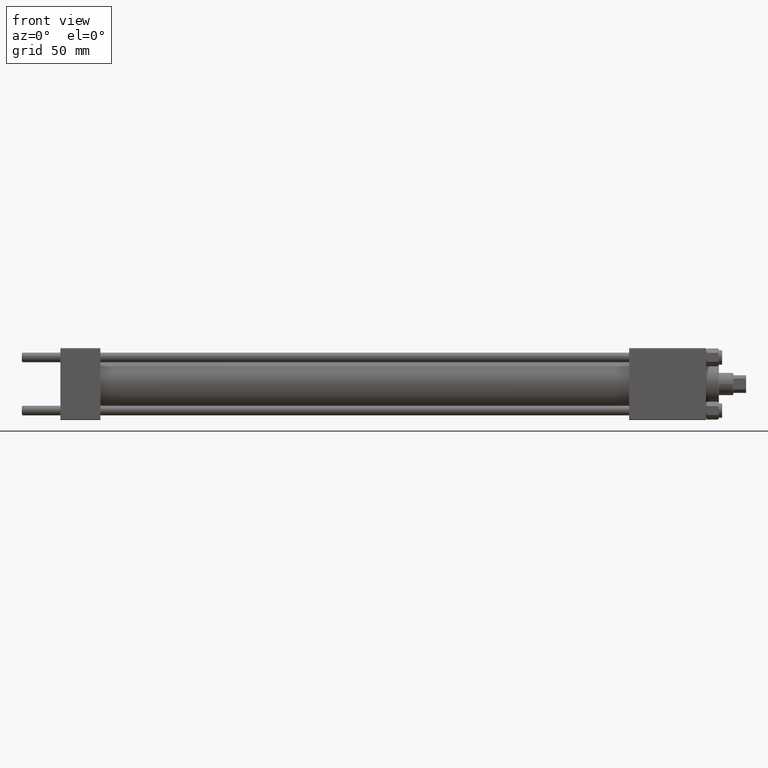
[diagram: clean part render]
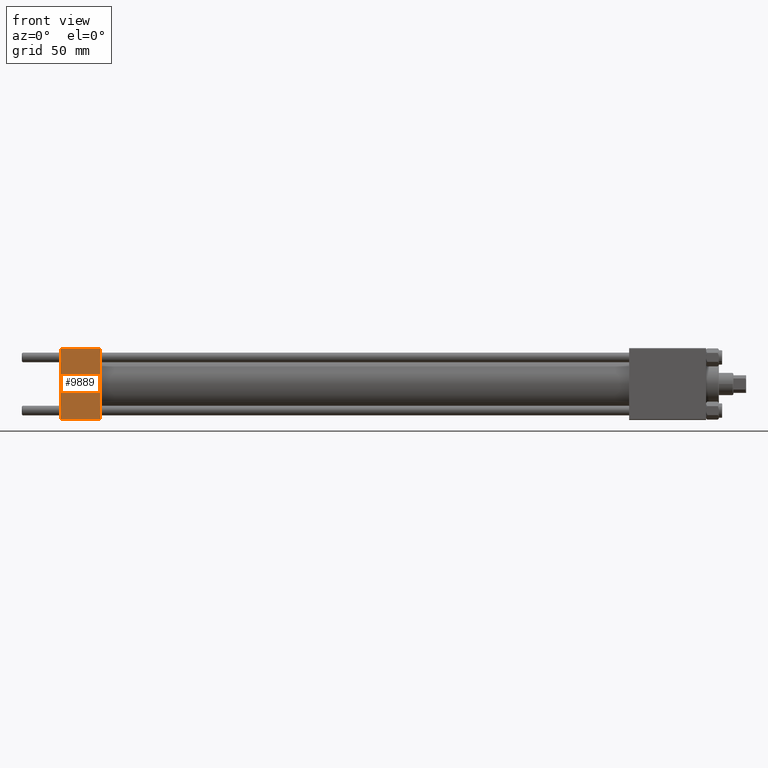
[diagram: same view with one face highlighted and labeled with its STEP entity id]
A machine part, front view. The second image highlights one B-rep face of the part: STEP entity #9889.
In plain terms, the highlighted planar face has unit normal (0, 1, 0).
Its self-contained STEP definition (entity closure, byte-faithful):
#3473 = DIRECTION ( 'NONE',  ( 0.000000000000000000, -0.000000000000000000, 1.000000000000000000 ) ) ;
#5633 = LINE ( 'NONE', #25309, #13976 ) ;
#7115 = LINE ( 'NONE', #22521, #9536 ) ;
#9536 = VECTOR ( 'NONE', #37898, 1000.000000000000000 ) ;
#9889 = ADVANCED_FACE ( 'NONE', ( #45855 ), #19139, .F. ) ;
#10902 = CARTESIAN_POINT ( 'NONE',  ( 0.000000000000000000, -22.50000000000000000, 22.00000000000000000 ) ) ;
#11278 = ORIENTED_EDGE ( 'NONE', *, *, #22042, .T. ) ;
#12286 = CARTESIAN_POINT ( 'NONE',  ( 25.00000000000000000, -22.50000000000000000, 22.50000000000000000 ) ) ;
#12899 = CARTESIAN_POINT ( 'NONE',  ( 0.000000000000000000, -22.50000000000000000, 22.50000000000000000 ) ) ;
#13435 = EDGE_CURVE ( 'NONE', #13810, #46508, #34583, .T. ) ;
#13810 = VERTEX_POINT ( 'NONE', #45069 ) ;
#13976 = VECTOR ( 'NONE', #36396, 1000.000000000000000 ) ;
#16307 = EDGE_LOOP ( 'NONE', ( #34535, #32614, #22073, #11278 ) ) ;
#19139 = PLANE ( 'NONE',  #36689 ) ;
#20204 = VERTEX_POINT ( 'NONE', #10902 ) ;
#21512 = VECTOR ( 'NONE', #34075, 1000.000000000000000 ) ;
#22042 = EDGE_CURVE ( 'NONE', #13810, #20204, #5633, .T. ) ;
#22073 = ORIENTED_EDGE ( 'NONE', *, *, #13435, .F. ) ;
#22521 = CARTESIAN_POINT ( 'NONE',  ( 25.00000000000000000, -22.50000000000000000, -21.99999999999998579 ) ) ;
#25309 = CARTESIAN_POINT ( 'NONE',  ( 25.00000000000000000, -22.50000000000000000, 22.00000000000000000 ) ) ;
#32614 = ORIENTED_EDGE ( 'NONE', *, *, #40112, .T. ) ;
#33465 = CARTESIAN_POINT ( 'NONE',  ( 25.00000000000000000, -22.50000000000000000, -21.99999999999997158 ) ) ;
#34075 = DIRECTION ( 'NONE',  ( 0.000000000000000000, 0.000000000000000000, -1.000000000000000000 ) ) ;
#34535 = ORIENTED_EDGE ( 'NONE', *, *, #37884, .T. ) ;
#34583 = LINE ( 'NONE', #42414, #21512 ) ;
#36396 = DIRECTION ( 'NONE',  ( -1.000000000000000000, 0.000000000000000000, 0.000000000000000000 ) ) ;
#36689 = AXIS2_PLACEMENT_3D ( 'NONE', #12286, #38802, #3473 ) ;
#37884 = EDGE_CURVE ( 'NONE', #20204, #46245, #40162, .T. ) ;
#37898 = DIRECTION ( 'NONE',  ( 1.000000000000000000, 0.000000000000000000, 0.000000000000000000 ) ) ;
#38503 = VECTOR ( 'NONE', #48891, 1000.000000000000000 ) ;
#38802 = DIRECTION ( 'NONE',  ( -0.000000000000000000, 1.000000000000000000, 0.000000000000000000 ) ) ;
#40112 = EDGE_CURVE ( 'NONE', #46245, #46508, #7115, .T. ) ;
#40162 = LINE ( 'NONE', #12899, #38503 ) ;
#42414 = CARTESIAN_POINT ( 'NONE',  ( 25.00000000000000000, -22.50000000000000000, 22.50000000000000000 ) ) ;
#45069 = CARTESIAN_POINT ( 'NONE',  ( 25.00000000000000000, -22.50000000000000000, 22.00000000000000000 ) ) ;
#45855 = FACE_OUTER_BOUND ( 'NONE', #16307, .T. ) ;
#46245 = VERTEX_POINT ( 'NONE', #46846 ) ;
#46508 = VERTEX_POINT ( 'NONE', #33465 ) ;
#46846 = CARTESIAN_POINT ( 'NONE',  ( 0.000000000000000000, -22.50000000000000000, -21.99999999999997158 ) ) ;
#48891 = DIRECTION ( 'NONE',  ( 0.000000000000000000, 0.000000000000000000, -1.000000000000000000 ) ) ;